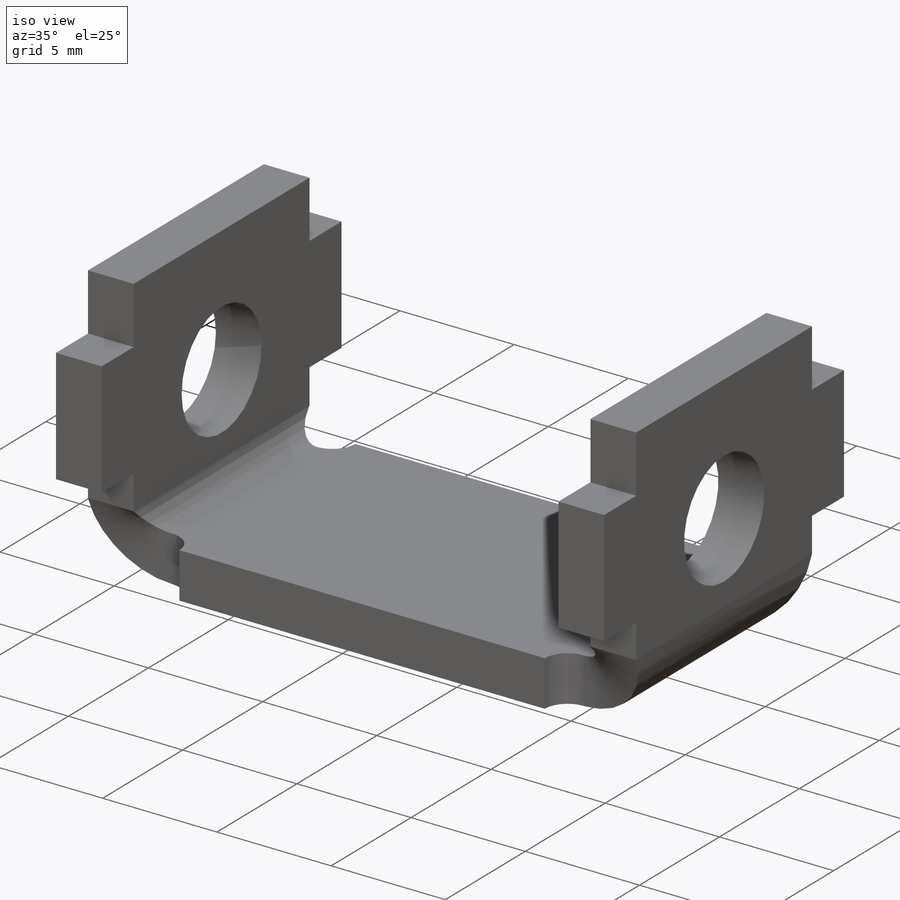
[diagram: iso view]
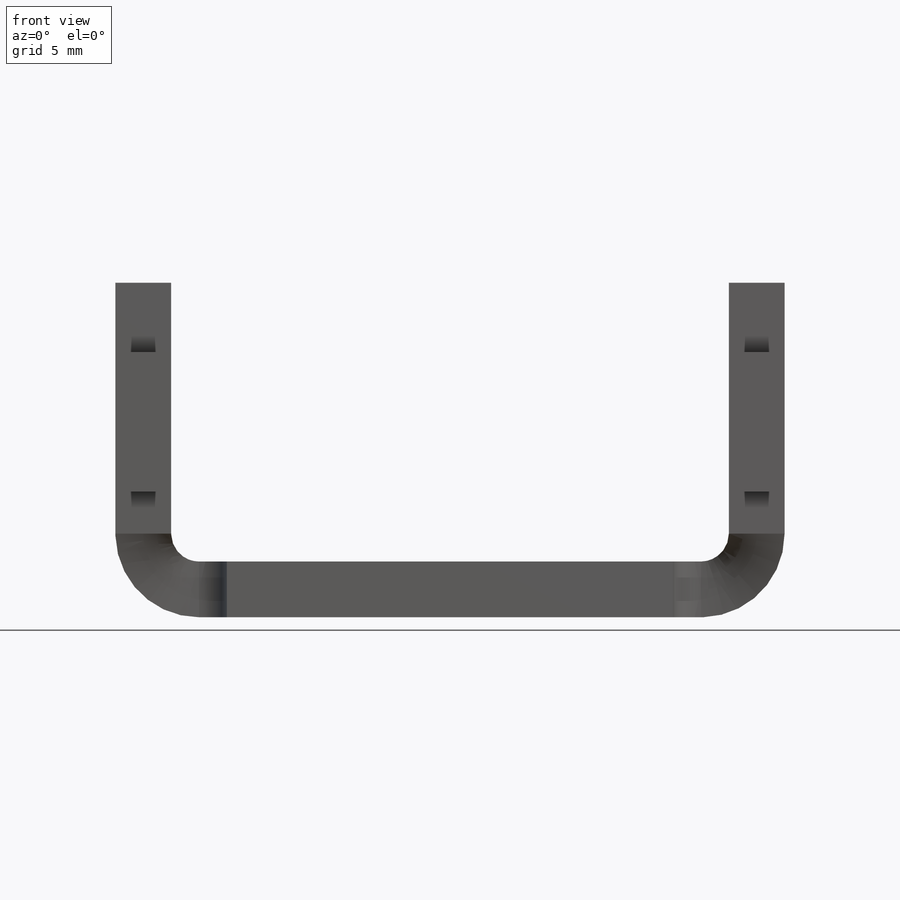
[diagram: front view]
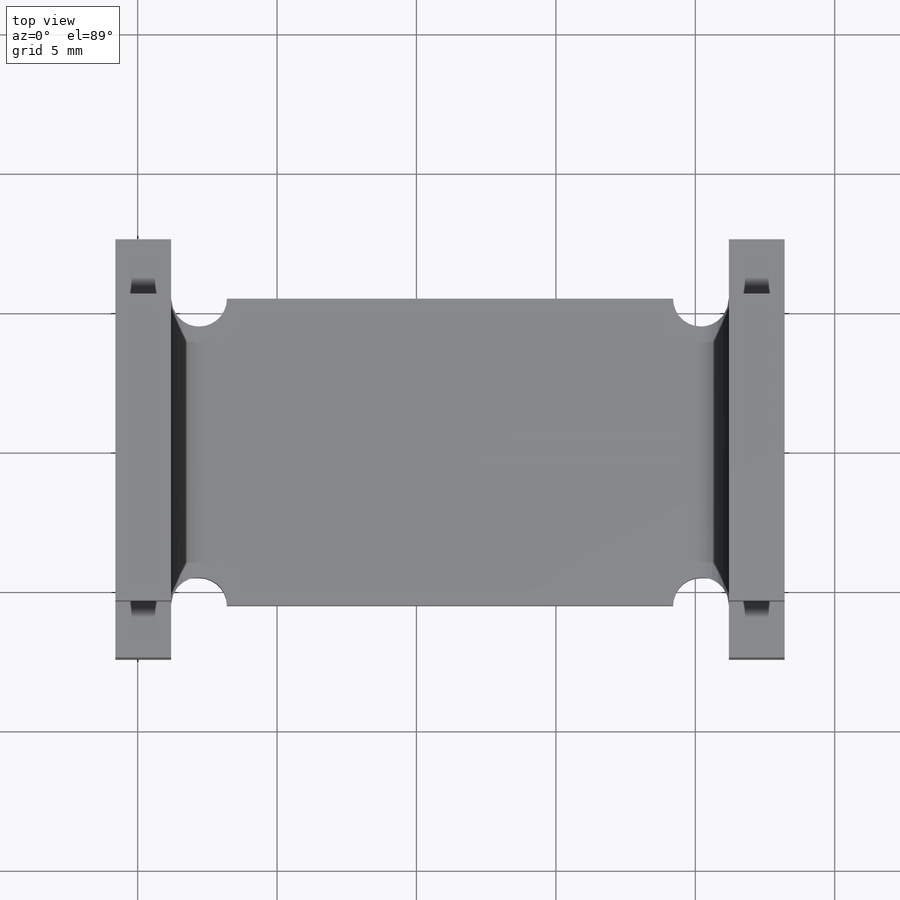
[diagram: top view]
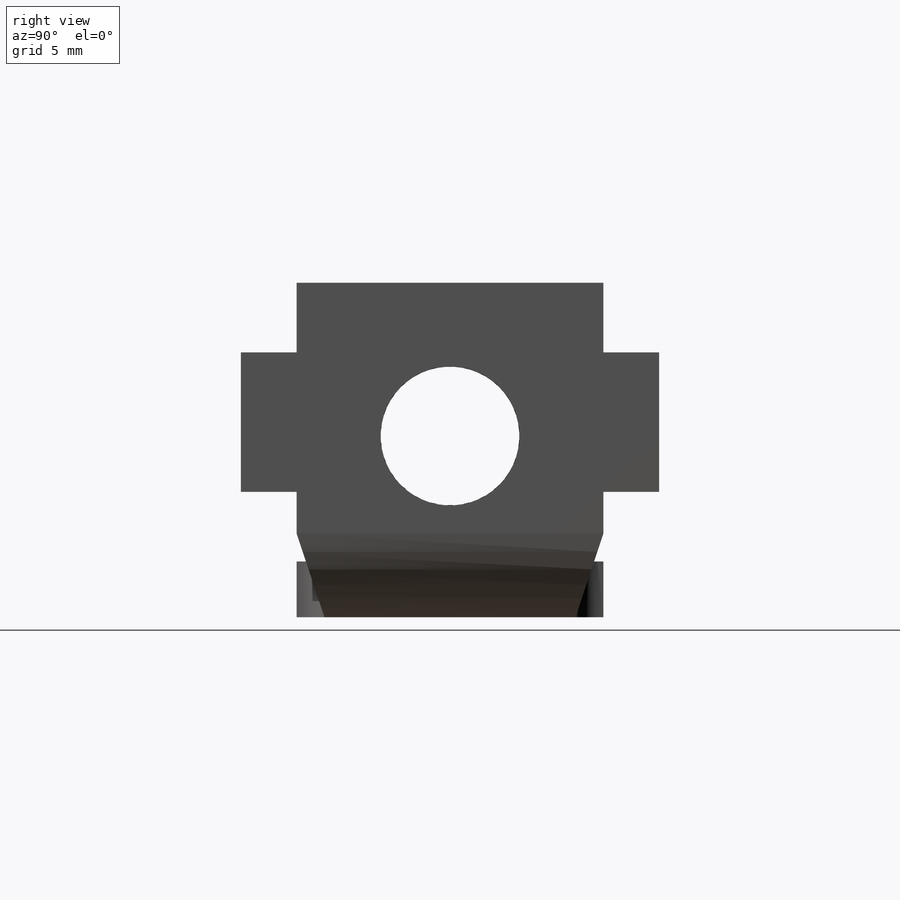
[diagram: right view]
SOLIDWORKS PART (.sldprt)
format: sldprt  version: not decoded by parser v0  size: 286,208 bytes
history: native  units: mm
features: sketch x8, plane x4, mirror x3, cut_extrude x2, extrude x2, material x1, sheet_metal_op x1 + 2 further entries (+12 scaffold rows collapsed)
feature tree (35):
  scaffold x12  (default folders/planes/origin — collapsed)
  material  "Matériau <non spécifié>"
  plane  "Face"
  plane  "Dessus"
  plane  "Droite"
  sketch  "Esquisse1"  dims[c1.D1=~97.967511mm c2.D1=24.0mm c2.D2=12.0mm c2.D3=12.0mm c2.D4=~21.79782mm c3.D1=11.0mm c3.Epaisseur=2.0mm c3.D6=1.0mm c3.D7=5.0mm]
  sheet_metal_op  "Tôlerie 1"
  sketch  "Esquisse-Angle1"  dims[c1.Pli dans angle1=0.0 c1.D1=0.0mm c1.D4=90.0deg c1.D5=2.0 c1.D8=1.0mm c1.D9=1.0mm c2.D1=1.0mm c2.D2=500.0mm c2.D3=0.0mm]
  sketch  "Esquisse-Plate1"  dims[D1=0.0mm]
  sketch  "Esquisse5"  dims[D1=5.0mm D2=5.5mm]
  cut_extrude  "Enlèv. mat.-Extru.1"  [1 undecoded]
  sketch  "Esquisse6"  dims[D1=2.0mm D2=5.0mm D3=2.5mm]
  extrude  "Extrusion3"  [1 undecoded]
  mirror  "Symétrie6"
  sketch  "Esquisse9"
  extrude  "Extrusion4"  [1 undecoded]
  mirror  "Symétrie7"
  plane  "Plan2"  Offset=1mm
  sketch  "Esquisse10"  dims[D1=2.0mm D2=2.0mm D3=1.0mm D4=1.0mm]
  cut_extrude  "Enlèv. mat.-Extru.3"  [1 undecoded]
  mirror  "Symétrie8"
  "Etat déplié1"
  sketch  "Lignes de pliage1"
  "Dépliage-<Pli dans angle2>1"
decode coverage: 6 of 16 modeling features carry decoded parameters; 2 rows unclassified (native names shown)
note: ~ marks probable driven/reference dimensions
note: 4 parameter values undecoded
summary: no parameter record found for 4 features
note: suppression state not decoded; provenance and decode notes live in map.json
